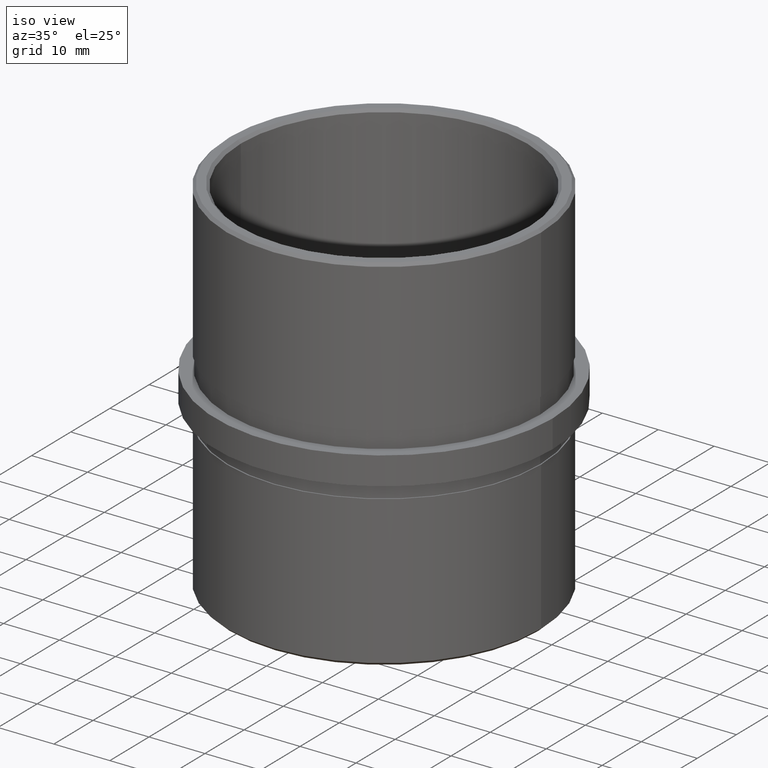
[diagram: clean part render]
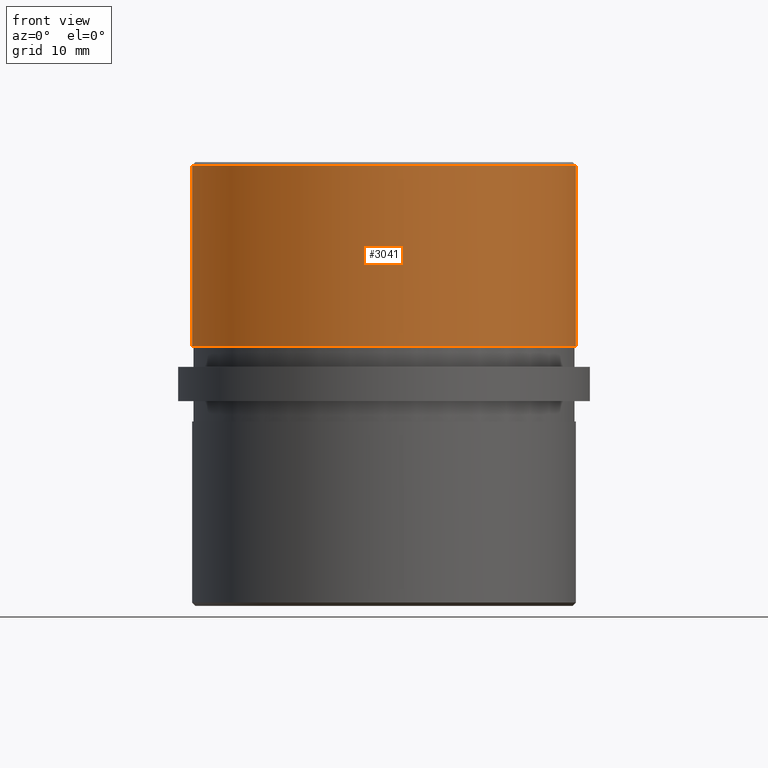
[diagram: tour spotlight — one face highlighted and labeled with its STEP entity id]
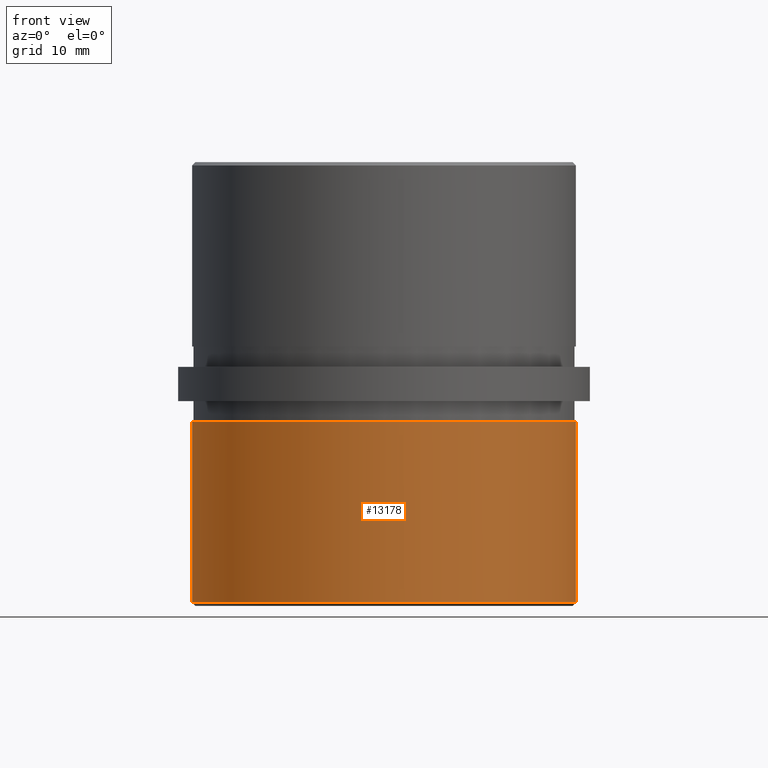
[diagram: tour spotlight — one face highlighted and labeled with its STEP entity id]
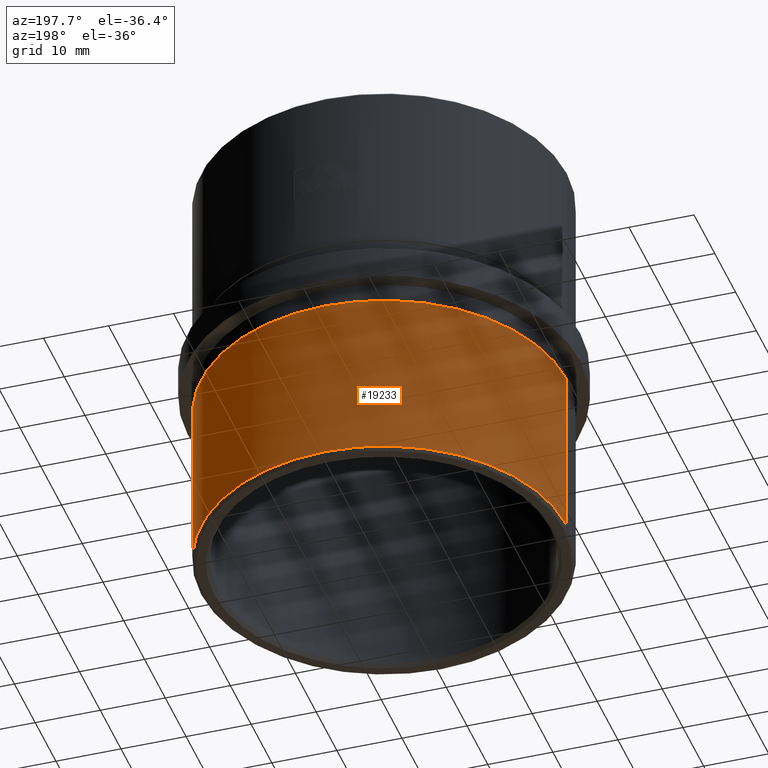
[diagram: tour spotlight — one face highlighted and labeled with its STEP entity id]
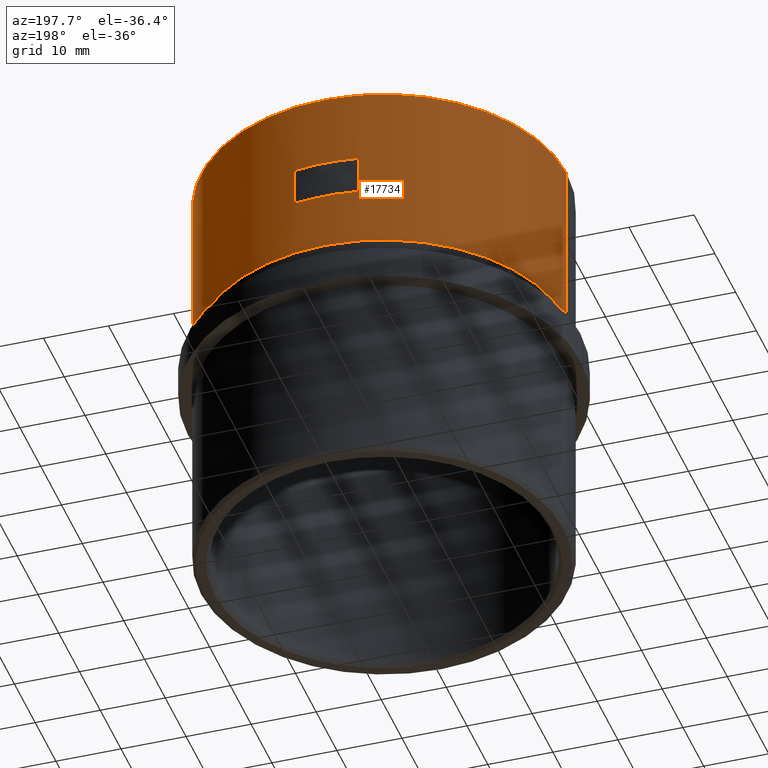
[diagram: tour spotlight — one face highlighted and labeled with its STEP entity id]
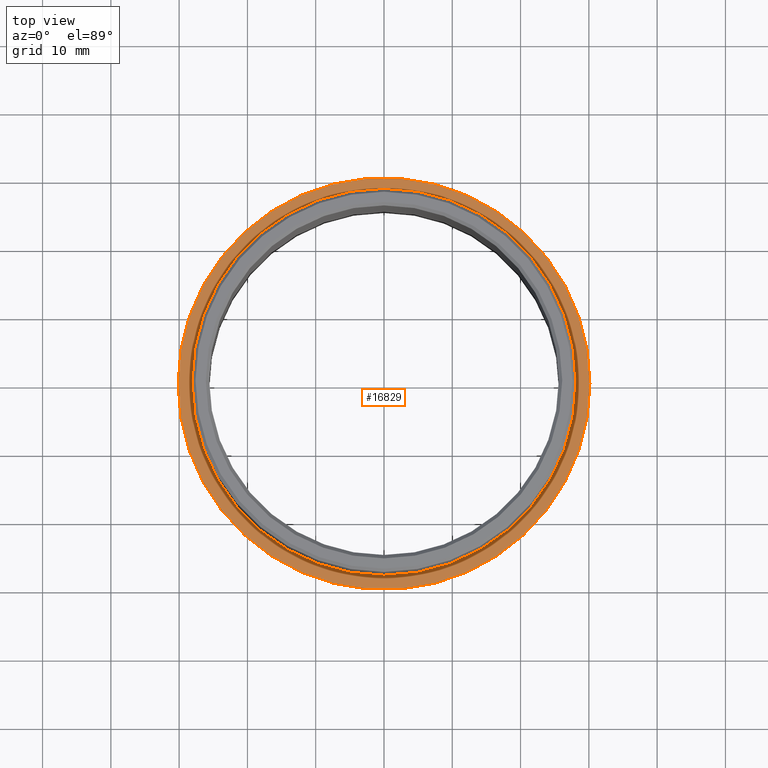
[diagram: tour spotlight — one face highlighted and labeled with its STEP entity id]
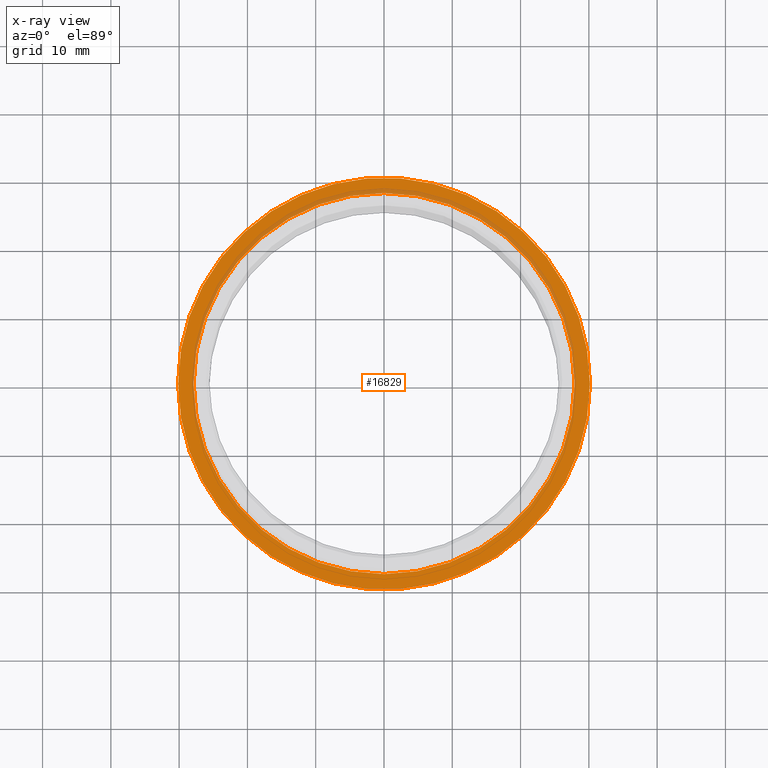
[diagram: x-ray of the same camera — body ghosted, this tour face saturated]
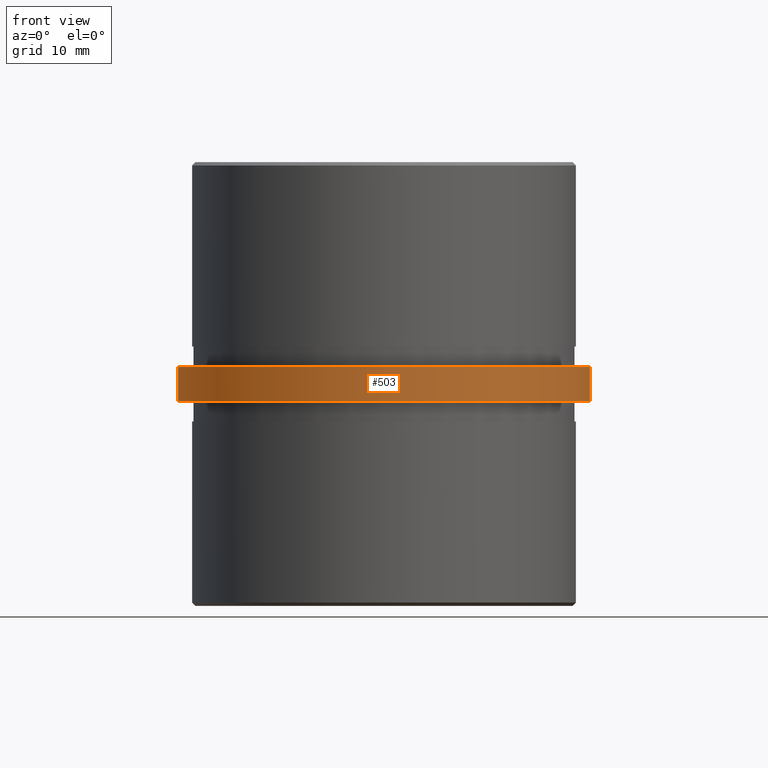
[diagram: tour spotlight — one face highlighted and labeled with its STEP entity id]
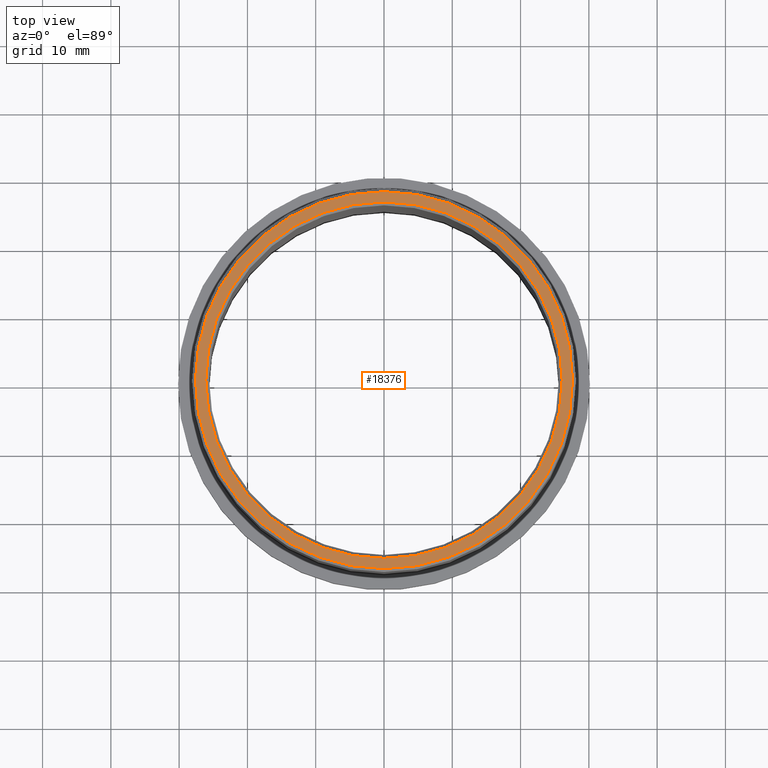
[diagram: tour spotlight — one face highlighted and labeled with its STEP entity id]
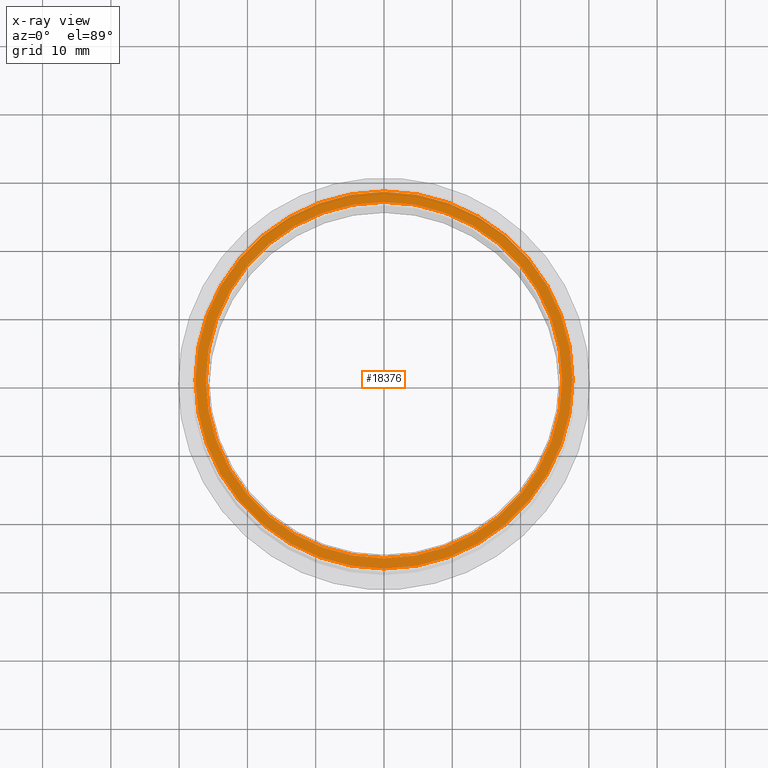
[diagram: x-ray of the same camera — body ghosted, this tour face saturated]
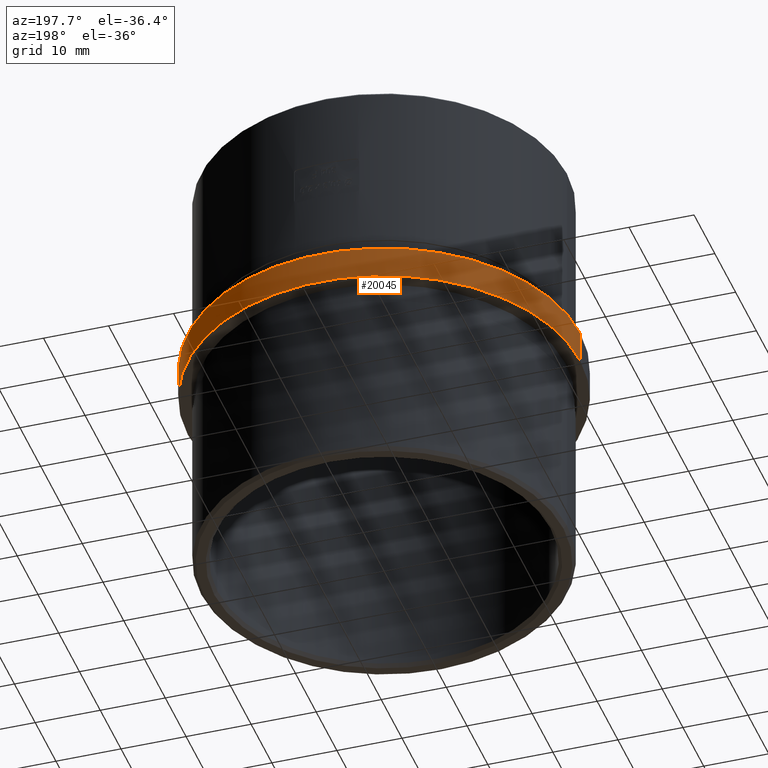
[diagram: tour spotlight — one face highlighted and labeled with its STEP entity id]
A machine part: a face-by-face anatomy tour. The part has 432 B-rep faces; the first image is the clean iso view, then the 8 largest visible faces are spotlighted one at a time (largest first), each with its STEP entity span.

Face 1 — front view, entity #3041. In plain terms, the highlighted cylindrical surface (partial cylindrical patch) has radius 28.1 mm, axis along (-0, -0, -1).
Definition (entity closure, byte-faithful):
#860 = CIRCLE ( 'NONE', #15706, 28.09999999999999800 ) ;
#883 = VERTEX_POINT ( 'NONE', #7283 ) ;
#1157 = CARTESIAN_POINT ( 'NONE',  ( 28.09999999999999800, 3.441257505604061800E-015, 5.500000000000000000 ) ) ;
#1861 = VECTOR ( 'NONE', #10223, 1000.000000000000000 ) ;
#2746 = EDGE_LOOP ( 'NONE', ( #18971, #15201, #4161, #17810 ) ) ;
#3041 = ADVANCED_FACE ( 'NONE', ( #10845 ), #7483, .T. ) ;
#3705 = EDGE_CURVE ( 'NONE', #17625, #4817, #5411, .T. ) ;
#4005 = DIRECTION ( 'NONE',  ( 0.0000000000000000000, 0.0000000000000000000, 1.000000000000000000 ) ) ;
#4161 = ORIENTED_EDGE ( 'NONE', *, *, #18342, .T. ) ;
#4192 = CARTESIAN_POINT ( 'NONE',  ( 28.09999999999999800, 3.441257505604061800E-015, 32.00000000000000000 ) ) ;
#4817 = VERTEX_POINT ( 'NONE', #7586 ) ;
#5411 = CIRCLE ( 'NONE', #6288, 28.09999999999999800 ) ;
#5832 = CARTESIAN_POINT ( 'NONE',  ( 0.0000000000000000000, 0.0000000000000000000, 32.50000000000000000 ) ) ;
#6288 = AXIS2_PLACEMENT_3D ( 'NONE', #7245, #15534, #17145 ) ;
#7245 = CARTESIAN_POINT ( 'NONE',  ( 0.0000000000000000000, 0.0000000000000000000, 32.00000000000000000 ) ) ;
#7283 = CARTESIAN_POINT ( 'NONE',  ( -28.09999999999999800, 0.0000000000000000000, 5.500000000000000000 ) ) ;
#7285 = DIRECTION ( 'NONE',  ( -1.000000000000000000, 0.0000000000000000000, 0.0000000000000000000 ) ) ;
#7483 = CYLINDRICAL_SURFACE ( 'NONE', #11982, 28.09999999999999800 ) ;
#7586 = CARTESIAN_POINT ( 'NONE',  ( -28.09999999999999800, 0.0000000000000000000, 32.00000000000000000 ) ) ;
#8087 = VECTOR ( 'NONE', #19711, 1000.000000000000000 ) ;
#8490 = EDGE_CURVE ( 'NONE', #17625, #18941, #11470, .T. ) ;
#10169 = LINE ( 'NONE', #10422, #1861 ) ;
#10223 = DIRECTION ( 'NONE',  ( -0.0000000000000000000, -0.0000000000000000000, -1.000000000000000000 ) ) ;
#10422 = CARTESIAN_POINT ( 'NONE',  ( -28.09999999999999800, 0.0000000000000000000, 32.50000000000000000 ) ) ;
#10662 = DIRECTION ( 'NONE',  ( -0.0000000000000000000, -0.0000000000000000000, -1.000000000000000000 ) ) ;
#10800 = CARTESIAN_POINT ( 'NONE',  ( 0.0000000000000000000, 0.0000000000000000000, 5.500000000000000000 ) ) ;
#10845 = FACE_OUTER_BOUND ( 'NONE', #2746, .T. ) ;
#11470 = LINE ( 'NONE', #13055, #8087 ) ;
#11982 = AXIS2_PLACEMENT_3D ( 'NONE', #5832, #10662, #7285 ) ;
#13055 = CARTESIAN_POINT ( 'NONE',  ( 28.09999999999999800, 3.441257505604061800E-015, 32.50000000000000000 ) ) ;
#14002 = DIRECTION ( 'NONE',  ( 1.000000000000000000, 0.0000000000000000000, 0.0000000000000000000 ) ) ;
#14180 = EDGE_CURVE ( 'NONE', #883, #18941, #860, .T. ) ;
#15201 = ORIENTED_EDGE ( 'NONE', *, *, #3705, .T. ) ;
#15534 = DIRECTION ( 'NONE',  ( 0.0000000000000000000, 0.0000000000000000000, -1.000000000000000000 ) ) ;
#15706 = AXIS2_PLACEMENT_3D ( 'NONE', #10800, #4005, #14002 ) ;
#17145 = DIRECTION ( 'NONE',  ( 1.000000000000000000, 0.0000000000000000000, 0.0000000000000000000 ) ) ;
#17625 = VERTEX_POINT ( 'NONE', #4192 ) ;
#17810 = ORIENTED_EDGE ( 'NONE', *, *, #14180, .T. ) ;
#18342 = EDGE_CURVE ( 'NONE', #4817, #883, #10169, .T. ) ;
#18941 = VERTEX_POINT ( 'NONE', #1157 ) ;
#18971 = ORIENTED_EDGE ( 'NONE', *, *, #8490, .F. ) ;
#19711 = DIRECTION ( 'NONE',  ( -0.0000000000000000000, -0.0000000000000000000, -1.000000000000000000 ) ) ;

Face 2 — front view, entity #13178. In plain terms, the highlighted cylindrical surface (partial cylindrical patch) has radius 28.1 mm, axis along (-0, -0, 1).
Definition (entity closure, byte-faithful):
#1494 = CARTESIAN_POINT ( 'NONE',  ( -28.09999999999999800, 0.0000000000000000000, -32.50000000000000000 ) ) ;
#1664 = ORIENTED_EDGE ( 'NONE', *, *, #4082, .T. ) ;
#2413 = DIRECTION ( 'NONE',  ( -0.0000000000000000000, -0.0000000000000000000, 1.000000000000000000 ) ) ;
#3394 = DIRECTION ( 'NONE',  ( -1.000000000000000000, 0.0000000000000000000, 0.0000000000000000000 ) ) ;
#4082 = EDGE_CURVE ( 'NONE', #6592, #6341, #10073, .T. ) ;
#4295 = FACE_OUTER_BOUND ( 'NONE', #5415, .T. ) ;
#4609 = DIRECTION ( 'NONE',  ( -0.0000000000000000000, -0.0000000000000000000, 1.000000000000000000 ) ) ;
#4897 = EDGE_CURVE ( 'NONE', #11489, #20130, #8641, .T. ) ;
#4986 = DIRECTION ( 'NONE',  ( -0.0000000000000000000, -0.0000000000000000000, 1.000000000000000000 ) ) ;
#5415 = EDGE_LOOP ( 'NONE', ( #1664, #19133, #21020, #19608 ) ) ;
#5826 = CYLINDRICAL_SURFACE ( 'NONE', #15586, 28.09999999999999800 ) ;
#6341 = VERTEX_POINT ( 'NONE', #20604 ) ;
#6592 = VERTEX_POINT ( 'NONE', #11435 ) ;
#7056 = CARTESIAN_POINT ( 'NONE',  ( 28.09999999999999800, -3.441257505604061800E-015, -32.50000000000000000 ) ) ;
#8327 = DIRECTION ( 'NONE',  ( -0.0000000000000000000, -0.0000000000000000000, 1.000000000000000000 ) ) ;
#8641 = CIRCLE ( 'NONE', #21538, 28.09999999999999800 ) ;
#10073 = CIRCLE ( 'NONE', #17865, 28.09999999999999800 ) ;
#10273 = EDGE_CURVE ( 'NONE', #6341, #20130, #17460, .T. ) ;
#11021 = EDGE_CURVE ( 'NONE', #6592, #11489, #18111, .T. ) ;
#11435 = CARTESIAN_POINT ( 'NONE',  ( -28.09999999999999800, 0.0000000000000000000, -32.00000000000001400 ) ) ;
#11489 = VERTEX_POINT ( 'NONE', #21360 ) ;
#12359 = CARTESIAN_POINT ( 'NONE',  ( 0.0000000000000000000, 0.0000000000000000000, -32.00000000000001400 ) ) ;
#12746 = CARTESIAN_POINT ( 'NONE',  ( 0.0000000000000000000, 0.0000000000000000000, -5.500000000000000000 ) ) ;
#13178 = ADVANCED_FACE ( 'NONE', ( #4295 ), #5826, .T. ) ;
#13352 = CARTESIAN_POINT ( 'NONE',  ( 28.09999999999999800, -3.441257505604061800E-015, -5.500000000000000000 ) ) ;
#14021 = DIRECTION ( 'NONE',  ( -1.000000000000000000, 0.0000000000000000000, 0.0000000000000000000 ) ) ;
#15586 = AXIS2_PLACEMENT_3D ( 'NONE', #18173, #4986, #3394 ) ;
#16112 = DIRECTION ( 'NONE',  ( 1.000000000000000000, 0.0000000000000000000, 0.0000000000000000000 ) ) ;
#16689 = VECTOR ( 'NONE', #20466, 1000.000000000000000 ) ;
#17460 = LINE ( 'NONE', #7056, #16689 ) ;
#17865 = AXIS2_PLACEMENT_3D ( 'NONE', #12359, #2413, #14021 ) ;
#18111 = LINE ( 'NONE', #1494, #20747 ) ;
#18173 = CARTESIAN_POINT ( 'NONE',  ( 0.0000000000000000000, 0.0000000000000000000, -32.50000000000000000 ) ) ;
#19133 = ORIENTED_EDGE ( 'NONE', *, *, #10273, .T. ) ;
#19608 = ORIENTED_EDGE ( 'NONE', *, *, #11021, .F. ) ;
#20130 = VERTEX_POINT ( 'NONE', #13352 ) ;
#20466 = DIRECTION ( 'NONE',  ( -0.0000000000000000000, -0.0000000000000000000, 1.000000000000000000 ) ) ;
#20604 = CARTESIAN_POINT ( 'NONE',  ( 28.09999999999999800, -3.441257505604061800E-015, -32.00000000000001400 ) ) ;
#20747 = VECTOR ( 'NONE', #8327, 1000.000000000000000 ) ;
#21020 = ORIENTED_EDGE ( 'NONE', *, *, #4897, .F. ) ;
#21360 = CARTESIAN_POINT ( 'NONE',  ( -28.09999999999999800, 0.0000000000000000000, -5.500000000000000000 ) ) ;
#21538 = AXIS2_PLACEMENT_3D ( 'NONE', #12746, #4609, #16112 ) ;

Face 3 — auxiliary view, entity #19233. In plain terms, the highlighted cylindrical surface (partial cylindrical patch) has radius 28.1 mm, axis along (-0, -0, 1).
Definition (entity closure, byte-faithful):
#590 = AXIS2_PLACEMENT_3D ( 'NONE', #7143, #10448, #8928 ) ;
#1494 = CARTESIAN_POINT ( 'NONE',  ( -28.09999999999999800, 0.0000000000000000000, -32.50000000000000000 ) ) ;
#1889 = EDGE_CURVE ( 'NONE', #20130, #11489, #2829, .T. ) ;
#2829 = CIRCLE ( 'NONE', #590, 28.09999999999999800 ) ;
#3252 = EDGE_LOOP ( 'NONE', ( #9963, #14251, #14636, #7588 ) ) ;
#4213 = EDGE_CURVE ( 'NONE', #6341, #6592, #20270, .T. ) ;
#4599 = DIRECTION ( 'NONE',  ( -1.000000000000000000, 0.0000000000000000000, 0.0000000000000000000 ) ) ;
#6072 = CARTESIAN_POINT ( 'NONE',  ( 0.0000000000000000000, 0.0000000000000000000, -32.50000000000000000 ) ) ;
#6341 = VERTEX_POINT ( 'NONE', #20604 ) ;
#6592 = VERTEX_POINT ( 'NONE', #11435 ) ;
#7056 = CARTESIAN_POINT ( 'NONE',  ( 28.09999999999999800, -3.441257505604061800E-015, -32.50000000000000000 ) ) ;
#7143 = CARTESIAN_POINT ( 'NONE',  ( 0.0000000000000000000, 0.0000000000000000000, -5.500000000000000000 ) ) ;
#7588 = ORIENTED_EDGE ( 'NONE', *, *, #1889, .F. ) ;
#8327 = DIRECTION ( 'NONE',  ( -0.0000000000000000000, -0.0000000000000000000, 1.000000000000000000 ) ) ;
#8928 = DIRECTION ( 'NONE',  ( 1.000000000000000000, 0.0000000000000000000, 0.0000000000000000000 ) ) ;
#9963 = ORIENTED_EDGE ( 'NONE', *, *, #10273, .F. ) ;
#10273 = EDGE_CURVE ( 'NONE', #6341, #20130, #17460, .T. ) ;
#10437 = AXIS2_PLACEMENT_3D ( 'NONE', #20858, #10818, #12497 ) ;
#10448 = DIRECTION ( 'NONE',  ( -0.0000000000000000000, -0.0000000000000000000, 1.000000000000000000 ) ) ;
#10818 = DIRECTION ( 'NONE',  ( -0.0000000000000000000, -0.0000000000000000000, 1.000000000000000000 ) ) ;
#11021 = EDGE_CURVE ( 'NONE', #6592, #11489, #18111, .T. ) ;
#11435 = CARTESIAN_POINT ( 'NONE',  ( -28.09999999999999800, 0.0000000000000000000, -32.00000000000001400 ) ) ;
#11489 = VERTEX_POINT ( 'NONE', #21360 ) ;
#12497 = DIRECTION ( 'NONE',  ( -1.000000000000000000, 0.0000000000000000000, 0.0000000000000000000 ) ) ;
#12732 = DIRECTION ( 'NONE',  ( -0.0000000000000000000, -0.0000000000000000000, 1.000000000000000000 ) ) ;
#13352 = CARTESIAN_POINT ( 'NONE',  ( 28.09999999999999800, -3.441257505604061800E-015, -5.500000000000000000 ) ) ;
#13556 = CYLINDRICAL_SURFACE ( 'NONE', #19825, 28.09999999999999800 ) ;
#14251 = ORIENTED_EDGE ( 'NONE', *, *, #4213, .T. ) ;
#14636 = ORIENTED_EDGE ( 'NONE', *, *, #11021, .T. ) ;
#16684 = FACE_OUTER_BOUND ( 'NONE', #3252, .T. ) ;
#16689 = VECTOR ( 'NONE', #20466, 1000.000000000000000 ) ;
#17460 = LINE ( 'NONE', #7056, #16689 ) ;
#18111 = LINE ( 'NONE', #1494, #20747 ) ;
#19233 = ADVANCED_FACE ( 'NONE', ( #16684 ), #13556, .T. ) ;
#19825 = AXIS2_PLACEMENT_3D ( 'NONE', #6072, #12732, #4599 ) ;
#20130 = VERTEX_POINT ( 'NONE', #13352 ) ;
#20270 = CIRCLE ( 'NONE', #10437, 28.09999999999999800 ) ;
#20466 = DIRECTION ( 'NONE',  ( -0.0000000000000000000, -0.0000000000000000000, 1.000000000000000000 ) ) ;
#20604 = CARTESIAN_POINT ( 'NONE',  ( 28.09999999999999800, -3.441257505604061800E-015, -32.00000000000001400 ) ) ;
#20747 = VECTOR ( 'NONE', #8327, 1000.000000000000000 ) ;
#20858 = CARTESIAN_POINT ( 'NONE',  ( 0.0000000000000000000, 0.0000000000000000000, -32.00000000000001400 ) ) ;
#21360 = CARTESIAN_POINT ( 'NONE',  ( -28.09999999999999800, 0.0000000000000000000, -5.500000000000000000 ) ) ;

Face 4 — auxiliary view, entity #17734. In plain terms, the highlighted cylindrical surface (partial cylindrical patch) has radius 28.1 mm, axis along (-0, -0, -1).
Definition (entity closure, byte-faithful):
#386 = VERTEX_POINT ( 'NONE', #15696 ) ;
#568 = CARTESIAN_POINT ( 'NONE',  ( 5.000000000000001800, 27.65158223321044400, 32.50000000000000000 ) ) ;
#883 = VERTEX_POINT ( 'NONE', #7283 ) ;
#914 = ORIENTED_EDGE ( 'NONE', *, *, #4588, .F. ) ;
#1088 = VERTEX_POINT ( 'NONE', #11142 ) ;
#1130 = VERTEX_POINT ( 'NONE', #16163 ) ;
#1157 = CARTESIAN_POINT ( 'NONE',  ( 28.09999999999999800, 3.441257505604061800E-015, 5.500000000000000000 ) ) ;
#1690 = EDGE_CURVE ( 'NONE', #386, #1088, #2589, .T. ) ;
#1751 = ORIENTED_EDGE ( 'NONE', *, *, #10203, .T. ) ;
#1861 = VECTOR ( 'NONE', #10223, 1000.000000000000000 ) ;
#2033 = CARTESIAN_POINT ( 'NONE',  ( 5.000000000000000900, 27.65158223321044800, 14.86694665514232100 ) ) ;
#2084 = DIRECTION ( 'NONE',  ( -0.0000000000000000000, -0.0000000000000000000, -1.000000000000000000 ) ) ;
#2589 = LINE ( 'NONE', #8810, #17169 ) ;
#2689 = CARTESIAN_POINT ( 'NONE',  ( -5.000000000000000000, 27.65158223321045100, 20.13305334485768200 ) ) ;
#2878 = EDGE_CURVE ( 'NONE', #17901, #386, #9312, .T. ) ;
#2889 = CARTESIAN_POINT ( 'NONE',  ( -4.631249715791938100, 27.71604600171159700, 14.50000000000000200 ) ) ;
#3326 = DIRECTION ( 'NONE',  ( -0.0000000000000000000, 0.0000000000000000000, 1.000000000000000000 ) ) ;
#3622 = DIRECTION ( 'NONE',  ( 1.000000000000000000, 0.0000000000000000000, 0.0000000000000000000 ) ) ;
#3663 = ORIENTED_EDGE ( 'NONE', *, *, #1690, .T. ) ;
#3687 = B_SPLINE_CURVE_WITH_KNOTS ( 'NONE', 3,
 ( #14825, #21431, #6846, #15205, #2033, #16737 ),
 .UNSPECIFIED., .F., .F.,
 ( 4, 2, 4 ),
 ( 0.0000000000000000000, 0.0003933540718352798600, 0.0007867081436705597200 ),
 .UNSPECIFIED. ) ;
#3714 = EDGE_CURVE ( 'NONE', #20998, #1130, #6739, .T. ) ;
#3788 = CARTESIAN_POINT ( 'NONE',  ( 0.0000000000000000000, 0.0000000000000000000, 5.500000000000000000 ) ) ;
#3877 = CARTESIAN_POINT ( 'NONE',  ( 0.0000000000000000000, 0.0000000000000000000, 32.00000000000000000 ) ) ;
#4142 = CARTESIAN_POINT ( 'NONE',  ( -4.500000000000000000, 27.73733945424470400, 14.49999999999999800 ) ) ;
#4192 = CARTESIAN_POINT ( 'NONE',  ( 28.09999999999999800, 3.441257505604061800E-015, 32.00000000000000000 ) ) ;
#4588 = EDGE_CURVE ( 'NONE', #8553, #16224, #12283, .T. ) ;
#4720 = CARTESIAN_POINT ( 'NONE',  ( -4.944874102788454600, 27.66165251501561800, 14.73721021094044500 ) ) ;
#4817 = VERTEX_POINT ( 'NONE', #7586 ) ;
#5107 = CARTESIAN_POINT ( 'NONE',  ( -4.499999999999999100, 27.73733945424470400, 20.50000000000000400 ) ) ;
#5171 = ORIENTED_EDGE ( 'NONE', *, *, #18573, .T. ) ;
#6661 = CARTESIAN_POINT ( 'NONE',  ( 0.0000000000000000000, 0.0000000000000000000, 32.50000000000000000 ) ) ;
#6739 = LINE ( 'NONE', #568, #18467 ) ;
#6846 = CARTESIAN_POINT ( 'NONE',  ( 4.759659684877599200, 27.69412341944585200, 14.55324790714815300 ) ) ;
#6978 = DIRECTION ( 'NONE',  ( 1.000000000000000000, 0.0000000000000000000, 0.0000000000000000000 ) ) ;
#7283 = CARTESIAN_POINT ( 'NONE',  ( -28.09999999999999800, 0.0000000000000000000, 5.500000000000000000 ) ) ;
#7332 = ORIENTED_EDGE ( 'NONE', *, *, #3714, .F. ) ;
#7523 = CARTESIAN_POINT ( 'NONE',  ( 4.500000000000002700, 27.73733945424470400, 20.50000000000000400 ) ) ;
#7586 = CARTESIAN_POINT ( 'NONE',  ( -28.09999999999999800, 0.0000000000000000000, 32.00000000000000000 ) ) ;
#7626 = ORIENTED_EDGE ( 'NONE', *, *, #17999, .T. ) ;
#7823 = CIRCLE ( 'NONE', #10147, 28.09999999999999800 ) ;
#8087 = VECTOR ( 'NONE', #19711, 1000.000000000000000 ) ;
#8159 = AXIS2_PLACEMENT_3D ( 'NONE', #3788, #20316, #6978 ) ;
#8309 = DIRECTION ( 'NONE',  ( -1.000000000000000000, 0.0000000000000000000, 0.0000000000000000000 ) ) ;
#8318 = CARTESIAN_POINT ( 'NONE',  ( 5.000000000000001800, 27.65158223321044400, 20.00000000000000400 ) ) ;
#8490 = EDGE_CURVE ( 'NONE', #17625, #18941, #11470, .T. ) ;
#8553 = VERTEX_POINT ( 'NONE', #12839 ) ;
#8696 = AXIS2_PLACEMENT_3D ( 'NONE', #19891, #16463, #21369 ) ;
#8741 = B_SPLINE_CURVE_WITH_KNOTS ( 'NONE', 3,
 ( #12637, #17892, #4720, #9498, #2889, #11097 ),
 .UNSPECIFIED., .F., .F.,
 ( 4, 2, 4 ),
 ( 1.734723475976807100E-018, 0.0003933514278565837800, 0.0007867028557131658200 ),
 .UNSPECIFIED. ) ;
#8810 = CARTESIAN_POINT ( 'NONE',  ( -4.999999999999994700, 27.65158223321044800, 32.50000000000000000 ) ) ;
#9152 = EDGE_LOOP ( 'NONE', ( #7332, #5171, #18889, #12697, #3663, #18485, #914, #9971 ) ) ;
#9312 = B_SPLINE_CURVE_WITH_KNOTS ( 'NONE', 3,
 ( #20915, #17680, #19258, #10651, #2689, #12414 ),
 .UNSPECIFIED., .F., .F.,
 ( 4, 2, 4 ),
 ( 8.673617379884035500E-019, 0.0003933540718352810000, 0.0007867081436705611300 ),
 .UNSPECIFIED. ) ;
#9473 = CARTESIAN_POINT ( 'NONE',  ( 4.760078634650889200, 27.69405082586939700, 20.44646449395661500 ) ) ;
#9498 = CARTESIAN_POINT ( 'NONE',  ( -4.760078634650883900, 27.69405082586939700, 14.55353550604338500 ) ) ;
#9971 = ORIENTED_EDGE ( 'NONE', *, *, #20712, .T. ) ;
#10147 = AXIS2_PLACEMENT_3D ( 'NONE', #3877, #15727, #10750 ) ;
#10169 = LINE ( 'NONE', #10422, #1861 ) ;
#10199 = ORIENTED_EDGE ( 'NONE', *, *, #8490, .T. ) ;
#10203 = EDGE_CURVE ( 'NONE', #18941, #883, #11444, .T. ) ;
#10223 = DIRECTION ( 'NONE',  ( -0.0000000000000000000, -0.0000000000000000000, -1.000000000000000000 ) ) ;
#10411 = VERTEX_POINT ( 'NONE', #7523 ) ;
#10422 = CARTESIAN_POINT ( 'NONE',  ( -28.09999999999999800, 0.0000000000000000000, 32.50000000000000000 ) ) ;
#10651 = CARTESIAN_POINT ( 'NONE',  ( -4.944796731287992100, 27.66166693410921700, 20.26299515633135700 ) ) ;
#10750 = DIRECTION ( 'NONE',  ( 1.000000000000000000, 0.0000000000000000000, 0.0000000000000000000 ) ) ;
#10846 = CARTESIAN_POINT ( 'NONE',  ( 4.631249715791941700, 27.71604600171159700, 20.50000000000000000 ) ) ;
#11002 = CARTESIAN_POINT ( 'NONE',  ( 4.944874102788458200, 27.66165251501561800, 20.26278978905956800 ) ) ;
#11097 = CARTESIAN_POINT ( 'NONE',  ( -4.500000000000000000, 27.73733945424470400, 14.49999999999999800 ) ) ;
#11142 = CARTESIAN_POINT ( 'NONE',  ( -4.999999999999994700, 27.65158223321044800, 15.00000000000000000 ) ) ;
#11444 = CIRCLE ( 'NONE', #8159, 28.09999999999999800 ) ;
#11470 = LINE ( 'NONE', #13055, #8087 ) ;
#11752 = CARTESIAN_POINT ( 'NONE',  ( 0.0000000000000000000, 0.0000000000000000000, 14.49999999999999800 ) ) ;
#12270 = FACE_BOUND ( 'NONE', #9152, .T. ) ;
#12283 = CIRCLE ( 'NONE', #16322, 28.09999999999999800 ) ;
#12414 = CARTESIAN_POINT ( 'NONE',  ( -4.999999999999994700, 27.65158223321044800, 20.00000000000000000 ) ) ;
#12607 = CARTESIAN_POINT ( 'NONE',  ( 5.000000000000001800, 27.65158223321044400, 20.00000000000000400 ) ) ;
#12637 = CARTESIAN_POINT ( 'NONE',  ( -4.999999999999994700, 27.65158223321044800, 15.00000000000000000 ) ) ;
#12697 = ORIENTED_EDGE ( 'NONE', *, *, #2878, .T. ) ;
#12839 = CARTESIAN_POINT ( 'NONE',  ( 4.500000000000000900, 27.73733945424470400, 14.49999999999999800 ) ) ;
#13055 = CARTESIAN_POINT ( 'NONE',  ( 28.09999999999999800, 3.441257505604061800E-015, 32.50000000000000000 ) ) ;
#13105 = CIRCLE ( 'NONE', #8696, 28.09999999999999800 ) ;
#14825 = CARTESIAN_POINT ( 'NONE',  ( 4.500000000000000900, 27.73733945424470400, 14.49999999999999800 ) ) ;
#15038 = AXIS2_PLACEMENT_3D ( 'NONE', #6661, #18311, #8309 ) ;
#15205 = CARTESIAN_POINT ( 'NONE',  ( 4.944796731287993000, 27.66166693410922100, 14.73700484366863800 ) ) ;
#15374 = DIRECTION ( 'NONE',  ( -0.0000000000000000000, -0.0000000000000000000, -1.000000000000000000 ) ) ;
#15696 = CARTESIAN_POINT ( 'NONE',  ( -4.999999999999994700, 27.65158223321044800, 20.00000000000000000 ) ) ;
#15727 = DIRECTION ( 'NONE',  ( 0.0000000000000000000, 0.0000000000000000000, -1.000000000000000000 ) ) ;
#15924 = CYLINDRICAL_SURFACE ( 'NONE', #15038, 28.09999999999999800 ) ;
#16163 = CARTESIAN_POINT ( 'NONE',  ( 5.000000000000001800, 27.65158223321044400, 15.00000000000000000 ) ) ;
#16224 = VERTEX_POINT ( 'NONE', #4142 ) ;
#16322 = AXIS2_PLACEMENT_3D ( 'NONE', #11752, #3326, #3622 ) ;
#16463 = DIRECTION ( 'NONE',  ( -3.469446951953615200E-016, 0.0000000000000000000, 1.000000000000000000 ) ) ;
#16708 = ORIENTED_EDGE ( 'NONE', *, *, #18342, .F. ) ;
#16737 = CARTESIAN_POINT ( 'NONE',  ( 5.000000000000001800, 27.65158223321044400, 15.00000000000000000 ) ) ;
#17169 = VECTOR ( 'NONE', #15374, 1000.000000000000000 ) ;
#17625 = VERTEX_POINT ( 'NONE', #4192 ) ;
#17680 = CARTESIAN_POINT ( 'NONE',  ( -4.631283519867141200, 27.71604051746755100, 20.49999999999999300 ) ) ;
#17734 = ADVANCED_FACE ( 'NONE', ( #12270, #18563 ), #15924, .T. ) ;
#17892 = CARTESIAN_POINT ( 'NONE',  ( -4.999999999999999100, 27.65158223321045500, 14.86698145152749900 ) ) ;
#17901 = VERTEX_POINT ( 'NONE', #5107 ) ;
#17999 = EDGE_CURVE ( 'NONE', #4817, #17625, #7823, .T. ) ;
#18291 = EDGE_LOOP ( 'NONE', ( #7626, #10199, #1751, #16708 ) ) ;
#18311 = DIRECTION ( 'NONE',  ( -0.0000000000000000000, -0.0000000000000000000, -1.000000000000000000 ) ) ;
#18342 = EDGE_CURVE ( 'NONE', #4817, #883, #10169, .T. ) ;
#18467 = VECTOR ( 'NONE', #2084, 1000.000000000000000 ) ;
#18485 = ORIENTED_EDGE ( 'NONE', *, *, #19691, .T. ) ;
#18563 = FACE_OUTER_BOUND ( 'NONE', #18291, .T. ) ;
#18573 = EDGE_CURVE ( 'NONE', #20998, #10411, #21328, .T. ) ;
#18889 = ORIENTED_EDGE ( 'NONE', *, *, #21389, .T. ) ;
#18941 = VERTEX_POINT ( 'NONE', #1157 ) ;
#19258 = CARTESIAN_POINT ( 'NONE',  ( -4.759659684877597400, 27.69412341944585200, 20.44675209285185600 ) ) ;
#19691 = EDGE_CURVE ( 'NONE', #1088, #16224, #8741, .T. ) ;
#19711 = DIRECTION ( 'NONE',  ( -0.0000000000000000000, -0.0000000000000000000, -1.000000000000000000 ) ) ;
#19891 = CARTESIAN_POINT ( 'NONE',  ( 0.0000000000000000000, 0.0000000000000000000, 20.50000000000000400 ) ) ;
#20316 = DIRECTION ( 'NONE',  ( 0.0000000000000000000, 0.0000000000000000000, 1.000000000000000000 ) ) ;
#20712 = EDGE_CURVE ( 'NONE', #8553, #1130, #3687, .T. ) ;
#20891 = CARTESIAN_POINT ( 'NONE',  ( 5.000000000000002700, 27.65158223321044400, 20.13301854847249600 ) ) ;
#20915 = CARTESIAN_POINT ( 'NONE',  ( -4.499999999999999100, 27.73733945424470400, 20.50000000000000400 ) ) ;
#20998 = VERTEX_POINT ( 'NONE', #8318 ) ;
#21104 = CARTESIAN_POINT ( 'NONE',  ( 4.500000000000002700, 27.73733945424470400, 20.50000000000000400 ) ) ;
#21328 = B_SPLINE_CURVE_WITH_KNOTS ( 'NONE', 3,
 ( #12607, #20891, #11002, #9473, #10846, #21104 ),
 .UNSPECIFIED., .F., .F.,
 ( 4, 2, 4 ),
 ( 0.0000000000000000000, 0.0003933514278565829600, 0.0007867028557131659300 ),
 .UNSPECIFIED. ) ;
#21369 = DIRECTION ( 'NONE',  ( 1.000000000000000000, 0.0000000000000000000, 3.704035891765424700E-016 ) ) ;
#21389 = EDGE_CURVE ( 'NONE', #10411, #17901, #13105, .T. ) ;
#21431 = CARTESIAN_POINT ( 'NONE',  ( 4.631283519867142000, 27.71604051746755100, 14.50000000000000000 ) ) ;

Face 5 — top view, entity #16829. An x-ray twin of the same camera follows (body ghosted, this face saturated) — the face is partly hidden behind the body. In plain terms, the highlighted planar face has unit normal (0, 0, 1).
Definition (entity closure, byte-faithful):
#218 = EDGE_LOOP ( 'NONE', ( #12862, #18038 ) ) ;
#855 = FACE_OUTER_BOUND ( 'NONE', #218, .T. ) ;
#1421 = EDGE_CURVE ( 'NONE', #5720, #21567, #19062, .T. ) ;
#1843 = AXIS2_PLACEMENT_3D ( 'NONE', #12987, #11244, #14665 ) ;
#3085 = EDGE_LOOP ( 'NONE', ( #16862, #15250 ) ) ;
#3118 = CIRCLE ( 'NONE', #1843, 30.14999999999999900 ) ;
#3526 = AXIS2_PLACEMENT_3D ( 'NONE', #12167, #15679, #12317 ) ;
#4374 = DIRECTION ( 'NONE',  ( 0.0000000000000000000, 0.0000000000000000000, 1.000000000000000000 ) ) ;
#5279 = DIRECTION ( 'NONE',  ( 0.0000000000000000000, 0.0000000000000000000, 1.000000000000000000 ) ) ;
#5720 = VERTEX_POINT ( 'NONE', #6873 ) ;
#6094 = CARTESIAN_POINT ( 'NONE',  ( 27.89999999999999900, 3.416764569621115100E-015, 2.500000000000000000 ) ) ;
#6409 = VERTEX_POINT ( 'NONE', #7385 ) ;
#6602 = DIRECTION ( 'NONE',  ( 0.0000000000000000000, 0.0000000000000000000, 1.000000000000000000 ) ) ;
#6821 = DIRECTION ( 'NONE',  ( 1.000000000000000000, 0.0000000000000000000, 0.0000000000000000000 ) ) ;
#6873 = CARTESIAN_POINT ( 'NONE',  ( -30.14999999999999900, 0.0000000000000000000, 2.500000000000000000 ) ) ;
#7385 = CARTESIAN_POINT ( 'NONE',  ( -27.89999999999999900, 0.0000000000000000000, 2.500000000000000000 ) ) ;
#10044 = EDGE_CURVE ( 'NONE', #20917, #6409, #12502, .T. ) ;
#11244 = DIRECTION ( 'NONE',  ( 0.0000000000000000000, 0.0000000000000000000, 1.000000000000000000 ) ) ;
#11382 = AXIS2_PLACEMENT_3D ( 'NONE', #15394, #5279, #6821 ) ;
#12167 = CARTESIAN_POINT ( 'NONE',  ( 0.0000000000000000000, 0.0000000000000000000, 2.500000000000000000 ) ) ;
#12317 = DIRECTION ( 'NONE',  ( 1.000000000000000000, 0.0000000000000000000, 0.0000000000000000000 ) ) ;
#12502 = CIRCLE ( 'NONE', #16260, 27.89999999999999900 ) ;
#12862 = ORIENTED_EDGE ( 'NONE', *, *, #1421, .T. ) ;
#12987 = CARTESIAN_POINT ( 'NONE',  ( 0.0000000000000000000, 0.0000000000000000000, 2.500000000000000000 ) ) ;
#13188 = PLANE ( 'NONE',  #16578 ) ;
#14301 = CARTESIAN_POINT ( 'NONE',  ( 0.0000000000000000000, 0.0000000000000000000, 2.500000000000000000 ) ) ;
#14665 = DIRECTION ( 'NONE',  ( 1.000000000000000000, 0.0000000000000000000, 0.0000000000000000000 ) ) ;
#14870 = CARTESIAN_POINT ( 'NONE',  ( 0.0000000000000000000, 0.0000000000000000000, 2.500000000000000000 ) ) ;
#15250 = ORIENTED_EDGE ( 'NONE', *, *, #10044, .F. ) ;
#15378 = EDGE_CURVE ( 'NONE', #6409, #20917, #18398, .T. ) ;
#15394 = CARTESIAN_POINT ( 'NONE',  ( 0.0000000000000000000, 0.0000000000000000000, 2.500000000000000000 ) ) ;
#15679 = DIRECTION ( 'NONE',  ( 0.0000000000000000000, 0.0000000000000000000, 1.000000000000000000 ) ) ;
#16260 = AXIS2_PLACEMENT_3D ( 'NONE', #14301, #4374, #17686 ) ;
#16578 = AXIS2_PLACEMENT_3D ( 'NONE', #14870, #6602, #16632 ) ;
#16632 = DIRECTION ( 'NONE',  ( 1.000000000000000000, 0.0000000000000000000, -0.0000000000000000000 ) ) ;
#16829 = ADVANCED_FACE ( 'NONE', ( #18045, #855 ), #13188, .T. ) ;
#16862 = ORIENTED_EDGE ( 'NONE', *, *, #15378, .F. ) ;
#17686 = DIRECTION ( 'NONE',  ( 1.000000000000000000, 0.0000000000000000000, 0.0000000000000000000 ) ) ;
#18038 = ORIENTED_EDGE ( 'NONE', *, *, #19723, .T. ) ;
#18045 = FACE_BOUND ( 'NONE', #3085, .T. ) ;
#18398 = CIRCLE ( 'NONE', #11382, 27.89999999999999900 ) ;
#19062 = CIRCLE ( 'NONE', #3526, 30.14999999999999900 ) ;
#19723 = EDGE_CURVE ( 'NONE', #21567, #5720, #3118, .T. ) ;
#20917 = VERTEX_POINT ( 'NONE', #6094 ) ;
#21304 = CARTESIAN_POINT ( 'NONE',  ( 30.14999999999999900, 3.692310099429270400E-015, 2.500000000000000000 ) ) ;
#21567 = VERTEX_POINT ( 'NONE', #21304 ) ;

Face 6 — front view, entity #503. In plain terms, the highlighted cylindrical surface (partial cylindrical patch) has radius 30.15 mm, axis along (-0, -0, -1).
Definition (entity closure, byte-faithful):
#503 = ADVANCED_FACE ( 'NONE', ( #9659 ), #2401, .T. ) ;
#1189 = ORIENTED_EDGE ( 'NONE', *, *, #1421, .F. ) ;
#1421 = EDGE_CURVE ( 'NONE', #5720, #21567, #19062, .T. ) ;
#2401 = CYLINDRICAL_SURFACE ( 'NONE', #21240, 30.14999999999999900 ) ;
#2423 = EDGE_LOOP ( 'NONE', ( #12774, #1189, #18819, #12754 ) ) ;
#2729 = DIRECTION ( 'NONE',  ( -0.0000000000000000000, -0.0000000000000000000, 1.000000000000000000 ) ) ;
#2851 = EDGE_CURVE ( 'NONE', #21567, #4012, #20024, .T. ) ;
#2857 = DIRECTION ( 'NONE',  ( 1.000000000000000000, 0.0000000000000000000, 0.0000000000000000000 ) ) ;
#3526 = AXIS2_PLACEMENT_3D ( 'NONE', #12167, #15679, #12317 ) ;
#3689 = VERTEX_POINT ( 'NONE', #8831 ) ;
#4012 = VERTEX_POINT ( 'NONE', #18727 ) ;
#4749 = VECTOR ( 'NONE', #17543, 1000.000000000000000 ) ;
#5290 = EDGE_CURVE ( 'NONE', #5720, #3689, #13336, .T. ) ;
#5720 = VERTEX_POINT ( 'NONE', #6873 ) ;
#6873 = CARTESIAN_POINT ( 'NONE',  ( -30.14999999999999900, 0.0000000000000000000, 2.500000000000000000 ) ) ;
#8831 = CARTESIAN_POINT ( 'NONE',  ( -30.14999999999999900, 0.0000000000000000000, -2.500000000000000000 ) ) ;
#9412 = DIRECTION ( 'NONE',  ( -1.000000000000000000, 0.0000000000000000000, 0.0000000000000000000 ) ) ;
#9659 = FACE_OUTER_BOUND ( 'NONE', #2423, .T. ) ;
#10936 = CARTESIAN_POINT ( 'NONE',  ( 0.0000000000000000000, 0.0000000000000000000, 2.500000000000000000 ) ) ;
#11826 = CIRCLE ( 'NONE', #15841, 30.14999999999999900 ) ;
#11905 = EDGE_CURVE ( 'NONE', #3689, #4012, #11826, .T. ) ;
#12167 = CARTESIAN_POINT ( 'NONE',  ( 0.0000000000000000000, 0.0000000000000000000, 2.500000000000000000 ) ) ;
#12317 = DIRECTION ( 'NONE',  ( 1.000000000000000000, 0.0000000000000000000, 0.0000000000000000000 ) ) ;
#12632 = CARTESIAN_POINT ( 'NONE',  ( 30.14999999999999900, 3.692310099429270400E-015, 2.500000000000000000 ) ) ;
#12754 = ORIENTED_EDGE ( 'NONE', *, *, #11905, .T. ) ;
#12774 = ORIENTED_EDGE ( 'NONE', *, *, #2851, .F. ) ;
#13336 = LINE ( 'NONE', #20330, #4749 ) ;
#13503 = VECTOR ( 'NONE', #17541, 1000.000000000000000 ) ;
#14280 = DIRECTION ( 'NONE',  ( -0.0000000000000000000, -0.0000000000000000000, -1.000000000000000000 ) ) ;
#14413 = CARTESIAN_POINT ( 'NONE',  ( 0.0000000000000000000, 0.0000000000000000000, -2.500000000000000000 ) ) ;
#15679 = DIRECTION ( 'NONE',  ( 0.0000000000000000000, 0.0000000000000000000, 1.000000000000000000 ) ) ;
#15841 = AXIS2_PLACEMENT_3D ( 'NONE', #14413, #2729, #2857 ) ;
#17541 = DIRECTION ( 'NONE',  ( -0.0000000000000000000, -0.0000000000000000000, -1.000000000000000000 ) ) ;
#17543 = DIRECTION ( 'NONE',  ( -0.0000000000000000000, -0.0000000000000000000, -1.000000000000000000 ) ) ;
#18727 = CARTESIAN_POINT ( 'NONE',  ( 30.14999999999999900, 3.692310099429270400E-015, -2.500000000000000000 ) ) ;
#18819 = ORIENTED_EDGE ( 'NONE', *, *, #5290, .T. ) ;
#19062 = CIRCLE ( 'NONE', #3526, 30.14999999999999900 ) ;
#20024 = LINE ( 'NONE', #12632, #13503 ) ;
#20330 = CARTESIAN_POINT ( 'NONE',  ( -30.14999999999999900, 0.0000000000000000000, 2.500000000000000000 ) ) ;
#21240 = AXIS2_PLACEMENT_3D ( 'NONE', #10936, #14280, #9412 ) ;
#21304 = CARTESIAN_POINT ( 'NONE',  ( 30.14999999999999900, 3.692310099429270400E-015, 2.500000000000000000 ) ) ;
#21567 = VERTEX_POINT ( 'NONE', #21304 ) ;

Face 7 — top view, entity #18376. An x-ray twin of the same camera follows (body ghosted, this face saturated) — the face is partly hidden behind the body. In plain terms, the highlighted planar face has unit normal (0, 0, 1).
Definition (entity closure, byte-faithful):
#90 = DIRECTION ( 'NONE',  ( -0.0000000000000000000, -0.0000000000000000000, -1.000000000000000000 ) ) ;
#259 = EDGE_LOOP ( 'NONE', ( #10977, #6462 ) ) ;
#435 = AXIS2_PLACEMENT_3D ( 'NONE', #6694, #90, #11625 ) ;
#613 = DIRECTION ( 'NONE',  ( 0.0000000000000000000, 0.0000000000000000000, 1.000000000000000000 ) ) ;
#907 = VERTEX_POINT ( 'NONE', #19137 ) ;
#2700 = EDGE_CURVE ( 'NONE', #11181, #907, #16629, .T. ) ;
#3068 = VERTEX_POINT ( 'NONE', #20715 ) ;
#3119 = CARTESIAN_POINT ( 'NONE',  ( -26.09999999999998400, 3.196328145774590000E-015, 32.50000000000000000 ) ) ;
#3289 = VERTEX_POINT ( 'NONE', #3119 ) ;
#3783 = CARTESIAN_POINT ( 'NONE',  ( 0.0000000000000000000, 0.0000000000000000000, 32.50000000000000000 ) ) ;
#4067 = ORIENTED_EDGE ( 'NONE', *, *, #17964, .T. ) ;
#5095 = CARTESIAN_POINT ( 'NONE',  ( 0.0000000000000000000, 0.0000000000000000000, 32.50000000000000000 ) ) ;
#5236 = FACE_BOUND ( 'NONE', #259, .T. ) ;
#6462 = ORIENTED_EDGE ( 'NONE', *, *, #18273, .T. ) ;
#6566 = CIRCLE ( 'NONE', #9010, 27.60000000000001200 ) ;
#6674 = AXIS2_PLACEMENT_3D ( 'NONE', #14804, #11378, #9930 ) ;
#6694 = CARTESIAN_POINT ( 'NONE',  ( 0.0000000000000000000, 0.0000000000000000000, 32.50000000000000000 ) ) ;
#6729 = AXIS2_PLACEMENT_3D ( 'NONE', #3783, #10153, #15404 ) ;
#7087 = FACE_OUTER_BOUND ( 'NONE', #20588, .T. ) ;
#7223 = DIRECTION ( 'NONE',  ( 1.000000000000000000, 0.0000000000000000000, 0.0000000000000000000 ) ) ;
#7929 = AXIS2_PLACEMENT_3D ( 'NONE', #5095, #16747, #17176 ) ;
#9010 = AXIS2_PLACEMENT_3D ( 'NONE', #12361, #613, #7223 ) ;
#9721 = ORIENTED_EDGE ( 'NONE', *, *, #2700, .T. ) ;
#9930 = DIRECTION ( 'NONE',  ( 1.000000000000000000, 0.0000000000000000000, 0.0000000000000000000 ) ) ;
#10153 = DIRECTION ( 'NONE',  ( 0.0000000000000000000, 0.0000000000000000000, 1.000000000000000000 ) ) ;
#10358 = PLANE ( 'NONE',  #6729 ) ;
#10977 = ORIENTED_EDGE ( 'NONE', *, *, #14247, .T. ) ;
#11181 = VERTEX_POINT ( 'NONE', #15103 ) ;
#11378 = DIRECTION ( 'NONE',  ( -0.0000000000000000000, -0.0000000000000000000, -1.000000000000000000 ) ) ;
#11486 = CIRCLE ( 'NONE', #435, 26.09999999999998400 ) ;
#11625 = DIRECTION ( 'NONE',  ( 1.000000000000000000, 0.0000000000000000000, 0.0000000000000000000 ) ) ;
#12361 = CARTESIAN_POINT ( 'NONE',  ( 0.0000000000000000000, 0.0000000000000000000, 32.50000000000000000 ) ) ;
#14247 = EDGE_CURVE ( 'NONE', #3068, #3289, #17274, .T. ) ;
#14804 = CARTESIAN_POINT ( 'NONE',  ( 0.0000000000000000000, 0.0000000000000000000, 32.50000000000000000 ) ) ;
#15103 = CARTESIAN_POINT ( 'NONE',  ( 27.60000000000001200, 3.410641335625378800E-015, 32.50000000000000000 ) ) ;
#15404 = DIRECTION ( 'NONE',  ( 1.000000000000000000, 0.0000000000000000000, -0.0000000000000000000 ) ) ;
#16629 = CIRCLE ( 'NONE', #7929, 27.60000000000001200 ) ;
#16747 = DIRECTION ( 'NONE',  ( 0.0000000000000000000, 0.0000000000000000000, 1.000000000000000000 ) ) ;
#17176 = DIRECTION ( 'NONE',  ( 1.000000000000000000, 0.0000000000000000000, 0.0000000000000000000 ) ) ;
#17274 = CIRCLE ( 'NONE', #6674, 26.09999999999998400 ) ;
#17964 = EDGE_CURVE ( 'NONE', #907, #11181, #6566, .T. ) ;
#18273 = EDGE_CURVE ( 'NONE', #3289, #3068, #11486, .T. ) ;
#18376 = ADVANCED_FACE ( 'NONE', ( #7087, #5236 ), #10358, .T. ) ;
#19137 = CARTESIAN_POINT ( 'NONE',  ( -27.60000000000001200, 0.0000000000000000000, 32.50000000000000000 ) ) ;
#20588 = EDGE_LOOP ( 'NONE', ( #4067, #9721 ) ) ;
#20715 = CARTESIAN_POINT ( 'NONE',  ( 26.09999999999998400, 0.0000000000000000000, 32.50000000000000000 ) ) ;

Face 8 — auxiliary view, entity #20045. In plain terms, the highlighted cylindrical surface (partial cylindrical patch) has radius 30.15 mm, axis along (-0, -0, -1).
Definition (entity closure, byte-faithful):
#1252 = ORIENTED_EDGE ( 'NONE', *, *, #5290, .F. ) ;
#1843 = AXIS2_PLACEMENT_3D ( 'NONE', #12987, #11244, #14665 ) ;
#2115 = ORIENTED_EDGE ( 'NONE', *, *, #19136, .T. ) ;
#2851 = EDGE_CURVE ( 'NONE', #21567, #4012, #20024, .T. ) ;
#3118 = CIRCLE ( 'NONE', #1843, 30.14999999999999900 ) ;
#3689 = VERTEX_POINT ( 'NONE', #8831 ) ;
#3710 = CARTESIAN_POINT ( 'NONE',  ( 0.0000000000000000000, 0.0000000000000000000, 2.500000000000000000 ) ) ;
#3999 = ORIENTED_EDGE ( 'NONE', *, *, #19723, .F. ) ;
#4012 = VERTEX_POINT ( 'NONE', #18727 ) ;
#4749 = VECTOR ( 'NONE', #17543, 1000.000000000000000 ) ;
#5188 = CYLINDRICAL_SURFACE ( 'NONE', #20842, 30.14999999999999900 ) ;
#5217 = DIRECTION ( 'NONE',  ( -1.000000000000000000, 0.0000000000000000000, 0.0000000000000000000 ) ) ;
#5290 = EDGE_CURVE ( 'NONE', #5720, #3689, #13336, .T. ) ;
#5720 = VERTEX_POINT ( 'NONE', #6873 ) ;
#5987 = CARTESIAN_POINT ( 'NONE',  ( 0.0000000000000000000, 0.0000000000000000000, -2.500000000000000000 ) ) ;
#6873 = CARTESIAN_POINT ( 'NONE',  ( -30.14999999999999900, 0.0000000000000000000, 2.500000000000000000 ) ) ;
#7051 = DIRECTION ( 'NONE',  ( -0.0000000000000000000, -0.0000000000000000000, -1.000000000000000000 ) ) ;
#8831 = CARTESIAN_POINT ( 'NONE',  ( -30.14999999999999900, 0.0000000000000000000, -2.500000000000000000 ) ) ;
#9011 = DIRECTION ( 'NONE',  ( 1.000000000000000000, 0.0000000000000000000, 0.0000000000000000000 ) ) ;
#10476 = EDGE_LOOP ( 'NONE', ( #3999, #15163, #2115, #1252 ) ) ;
#11244 = DIRECTION ( 'NONE',  ( 0.0000000000000000000, 0.0000000000000000000, 1.000000000000000000 ) ) ;
#12512 = DIRECTION ( 'NONE',  ( -0.0000000000000000000, -0.0000000000000000000, 1.000000000000000000 ) ) ;
#12632 = CARTESIAN_POINT ( 'NONE',  ( 30.14999999999999900, 3.692310099429270400E-015, 2.500000000000000000 ) ) ;
#12987 = CARTESIAN_POINT ( 'NONE',  ( 0.0000000000000000000, 0.0000000000000000000, 2.500000000000000000 ) ) ;
#13019 = CIRCLE ( 'NONE', #16475, 30.14999999999999900 ) ;
#13336 = LINE ( 'NONE', #20330, #4749 ) ;
#13503 = VECTOR ( 'NONE', #17541, 1000.000000000000000 ) ;
#14665 = DIRECTION ( 'NONE',  ( 1.000000000000000000, 0.0000000000000000000, 0.0000000000000000000 ) ) ;
#15163 = ORIENTED_EDGE ( 'NONE', *, *, #2851, .T. ) ;
#16475 = AXIS2_PLACEMENT_3D ( 'NONE', #5987, #12512, #9011 ) ;
#16910 = FACE_OUTER_BOUND ( 'NONE', #10476, .T. ) ;
#17541 = DIRECTION ( 'NONE',  ( -0.0000000000000000000, -0.0000000000000000000, -1.000000000000000000 ) ) ;
#17543 = DIRECTION ( 'NONE',  ( -0.0000000000000000000, -0.0000000000000000000, -1.000000000000000000 ) ) ;
#18727 = CARTESIAN_POINT ( 'NONE',  ( 30.14999999999999900, 3.692310099429270400E-015, -2.500000000000000000 ) ) ;
#19136 = EDGE_CURVE ( 'NONE', #4012, #3689, #13019, .T. ) ;
#19723 = EDGE_CURVE ( 'NONE', #21567, #5720, #3118, .T. ) ;
#20024 = LINE ( 'NONE', #12632, #13503 ) ;
#20045 = ADVANCED_FACE ( 'NONE', ( #16910 ), #5188, .T. ) ;
#20330 = CARTESIAN_POINT ( 'NONE',  ( -30.14999999999999900, 0.0000000000000000000, 2.500000000000000000 ) ) ;
#20842 = AXIS2_PLACEMENT_3D ( 'NONE', #3710, #7051, #5217 ) ;
#21304 = CARTESIAN_POINT ( 'NONE',  ( 30.14999999999999900, 3.692310099429270400E-015, 2.500000000000000000 ) ) ;
#21567 = VERTEX_POINT ( 'NONE', #21304 ) ;